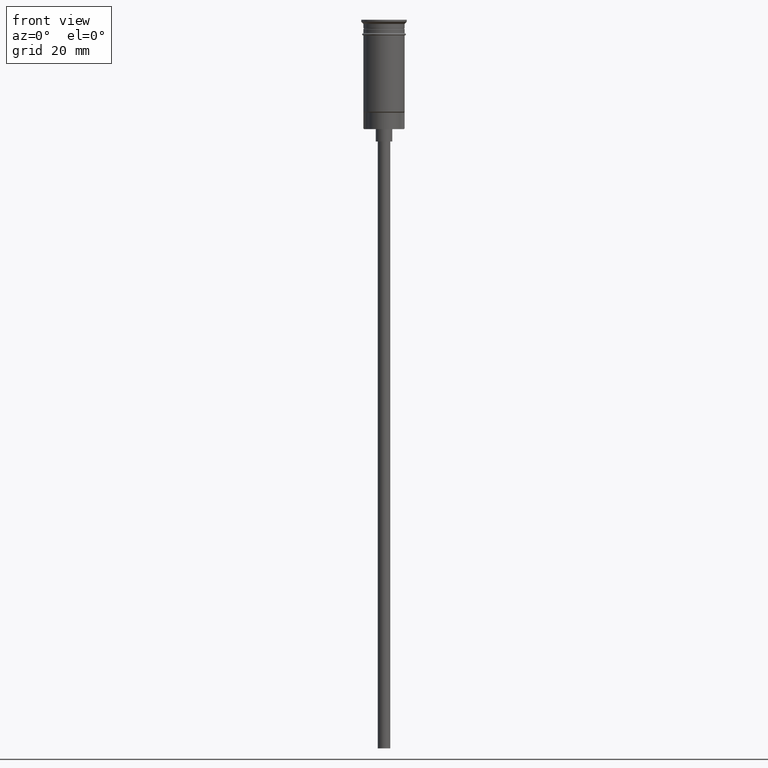
[diagram: clean part render]
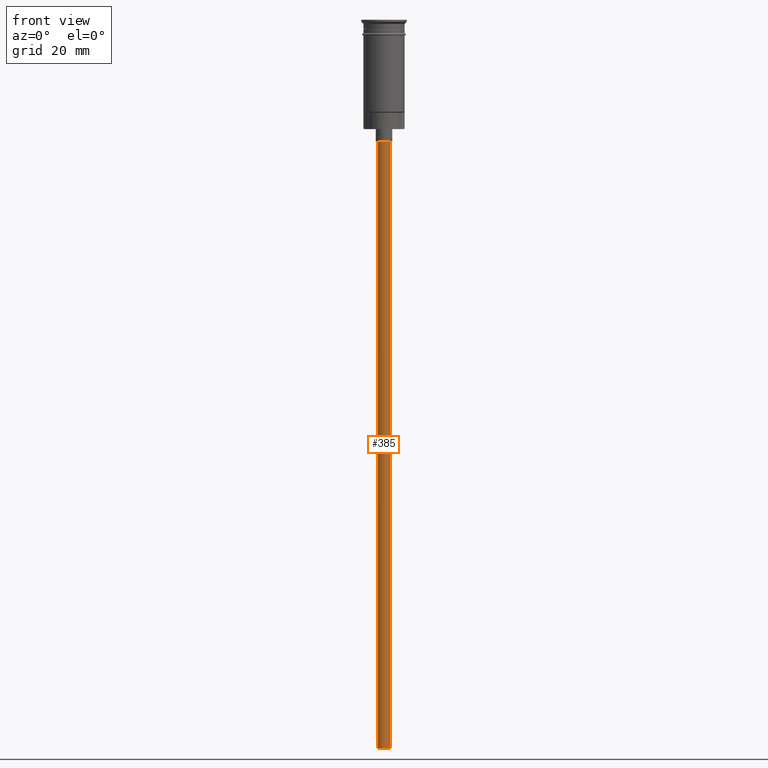
[diagram: same view with one face highlighted and labeled with its STEP entity id]
A machine part, front view. The second image highlights one B-rep face of the part: STEP entity #385.
In plain terms, the highlighted cylindrical surface (edge-blend (fillet) strip) has radius 1.5 mm, axis along (-0, -0, 1).
Its self-contained STEP definition (entity closure, byte-faithful):
#12 = DIRECTION ( 'NONE',  ( -0.000000000000000000, -0.000000000000000000, 1.000000000000000000 ) ) ;
#14 = CARTESIAN_POINT ( 'NONE',  ( -1.500000000000000222, 1.836970198721030181E-16, -29.50000000000000000 ) ) ;
#28 = CYLINDRICAL_SURFACE ( 'NONE', #1104, 1.500000000000000222 ) ;
#61 = EDGE_CURVE ( 'NONE', #585, #815, #574, .T. ) ;
#167 = CARTESIAN_POINT ( 'NONE',  ( 0.000000000000000000, 0.000000000000000000, -176.5000000000000000 ) ) ;
#168 = ORIENTED_EDGE ( 'NONE', *, *, #61, .T. ) ;
#205 = EDGE_CURVE ( 'NONE', #815, #1082, #1362, .T. ) ;
#271 = DIRECTION ( 'NONE',  ( 1.000000000000000000, 0.000000000000000000, 0.000000000000000000 ) ) ;
#283 = VECTOR ( 'NONE', #1193, 1000.000000000000000 ) ;
#384 = DIRECTION ( 'NONE',  ( -1.000000000000000000, 0.000000000000000000, 0.000000000000000000 ) ) ;
#385 = ADVANCED_FACE ( 'NONE', ( #646 ), #28, .T. ) ;
#393 = ORIENTED_EDGE ( 'NONE', *, *, #205, .T. ) ;
#404 = ORIENTED_EDGE ( 'NONE', *, *, #1259, .F. ) ;
#437 = AXIS2_PLACEMENT_3D ( 'NONE', #1469, #589, #730 ) ;
#534 = ORIENTED_EDGE ( 'NONE', *, *, #1119, .F. ) ;
#574 = LINE ( 'NONE', #1569, #283 ) ;
#585 = VERTEX_POINT ( 'NONE', #819 ) ;
#589 = DIRECTION ( 'NONE',  ( 0.000000000000000000, 0.000000000000000000, -1.000000000000000000 ) ) ;
#625 = CIRCLE ( 'NONE', #924, 1.500000000000000222 ) ;
#643 = CARTESIAN_POINT ( 'NONE',  ( 1.500000000000000222, 0.000000000000000000, -29.50000000000000000 ) ) ;
#646 = FACE_OUTER_BOUND ( 'NONE', #1381, .T. ) ;
#730 = DIRECTION ( 'NONE',  ( -1.000000000000000000, 0.000000000000000000, 0.000000000000000000 ) ) ;
#815 = VERTEX_POINT ( 'NONE', #643 ) ;
#819 = CARTESIAN_POINT ( 'NONE',  ( 1.500000000000000222, 0.000000000000000000, -176.5000000000000000 ) ) ;
#885 = LINE ( 'NONE', #1282, #1029 ) ;
#924 = AXIS2_PLACEMENT_3D ( 'NONE', #1497, #941, #384 ) ;
#941 = DIRECTION ( 'NONE',  ( 0.000000000000000000, 0.000000000000000000, -1.000000000000000000 ) ) ;
#1029 = VECTOR ( 'NONE', #1536, 1000.000000000000000 ) ;
#1082 = VERTEX_POINT ( 'NONE', #14 ) ;
#1104 = AXIS2_PLACEMENT_3D ( 'NONE', #167, #12, #271 ) ;
#1119 = EDGE_CURVE ( 'NONE', #585, #1314, #625, .T. ) ;
#1193 = DIRECTION ( 'NONE',  ( -0.000000000000000000, -0.000000000000000000, 1.000000000000000000 ) ) ;
#1259 = EDGE_CURVE ( 'NONE', #1314, #1082, #885, .T. ) ;
#1282 = CARTESIAN_POINT ( 'NONE',  ( -1.500000000000000222, 1.836970198721030181E-16, -176.5000000000000000 ) ) ;
#1314 = VERTEX_POINT ( 'NONE', #1514 ) ;
#1362 = CIRCLE ( 'NONE', #437, 1.500000000000000222 ) ;
#1381 = EDGE_LOOP ( 'NONE', ( #404, #534, #168, #393 ) ) ;
#1469 = CARTESIAN_POINT ( 'NONE',  ( 0.000000000000000000, 0.000000000000000000, -29.50000000000000000 ) ) ;
#1497 = CARTESIAN_POINT ( 'NONE',  ( 0.000000000000000000, 0.000000000000000000, -176.5000000000000000 ) ) ;
#1514 = CARTESIAN_POINT ( 'NONE',  ( -1.500000000000000222, 1.836970198721030181E-16, -176.5000000000000000 ) ) ;
#1536 = DIRECTION ( 'NONE',  ( -0.000000000000000000, -0.000000000000000000, 1.000000000000000000 ) ) ;
#1569 = CARTESIAN_POINT ( 'NONE',  ( 1.500000000000000222, 0.000000000000000000, -176.5000000000000000 ) ) ;